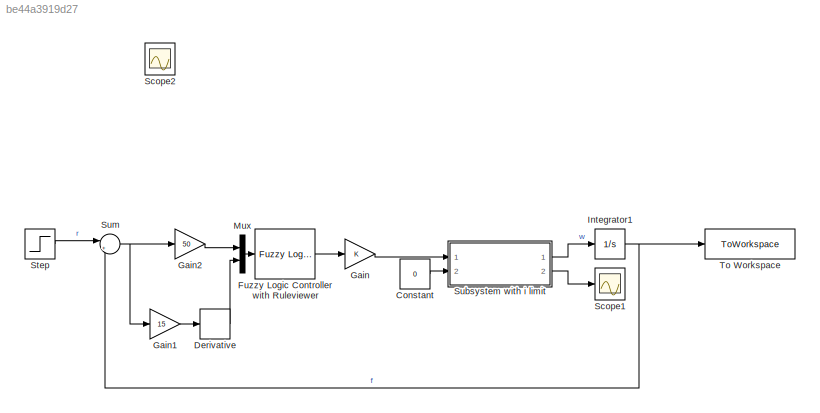
MODEL slx_be44a3919d27
KIND model
CONFIG AbsTol = auto
CONFIG EnableMultiTasking = off
CONFIG FixedStep = auto
CONFIG MaxStep = auto
CONFIG MinStep = auto
CONFIG RelTol = 1e-3
CONFIG SampleTimeConstraint = Unconstrained
CONFIG Solver = VariableStepAuto
CONFIG SolverName = VariableStepAuto
CONFIG StartTime = 0.0
CONFIG StopTime = 10.0
BLOCK [Constant] Constant
  Value = 0
BLOCK [Derivative] Derivative
BLOCK [Reference] Fuzzy Logic Controller with Ruleviewer  REF=fuzblock/Fuzzy Logic   (lib defined in mdl_858b3b3e7478)
Controller 
with Ruleviewer
  Ports = [1, 1]
  SourceBlock = fuzblock/Fuzzy Logic \nController \nwith Ruleviewer
  SourceProductBaseCode = FL
  SourceType = Fuzzy Inference System
BLOCK [Gain] Gain
BLOCK [Gain] Gain1
  Gain = 15
BLOCK [Gain] Gain2
  Gain = 50
BLOCK [Integrator] Integrator1
  Ports = [1, 1]
BLOCK [Mux] Mux
  DisplayOption = bar
  Inputs = 2
  Ports = [2, 1]
BLOCK [Scope] Scope1
  Floating = off
  NumInputPorts = 1
  Ports = [1]
  ScopeSpecificationString = Simulink.scopes.TimeScopeBlockCfg('CurrentConfiguration', extmgr.ConfigurationSet(extmgr.Configuration('Core','General UI',true),extmgr.Configuration('Core','Source UI',true),extmgr.Configuration('Sources','WiredSimulink',true,'DataLoggingVariableName','ScopeData1'),extmgr.Configuration('Visuals','Time Domain',true,'SerializedDisplays',{struct('MinYLimReal','-32.61623','MaxYLimReal','44.15708','YL...<+1418ch>
BLOCK [Scope] Scope2
  Floating = off
  IOType = viewer
  NumInputPorts = 1
  Ports = []
  ScopeSpecificationString = Simulink.scopes.TimeScopeBlockCfg('CurrentConfiguration', extmgr.ConfigurationSet(extmgr.Configuration('Core','General UI',true),extmgr.Configuration('Core','Source UI',true),extmgr.Configuration('Sources','WiredSimulink',true,'DataLoggingVariableName','ScopeData1'),extmgr.Configuration('Visuals','Time Domain',true,'SerializedDisplays',{struct('MinYLimReal','-0.12781','MaxYLimReal','1.15026','YLab...<+1418ch>
BLOCK [Step] Step
  SampleTime = 0
  Time = 0
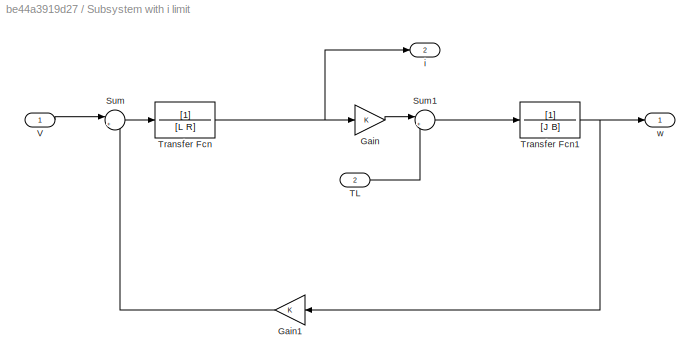
BLOCK [SubSystem] Subsystem with i limit
  Ports = [2, 2]
  RequestExecContextInheritance = off
BLOCK [Gain] Subsystem with i limit/Gain
  Gain = K
BLOCK [Gain] Subsystem with i limit/Gain1
  Gain = K
BLOCK [Sum] Subsystem with i limit/Sum
  Inputs = |+-
  Ports = [2, 1]
BLOCK [Sum] Subsystem with i limit/Sum1
  Inputs = |++
  Ports = [2, 1]
BLOCK [Inport] Subsystem with i limit/TL
  Port = 2
BLOCK [TransferFcn] Subsystem with i limit/Transfer Fcn
  Denominator = [L R]
BLOCK [TransferFcn] Subsystem with i limit/Transfer Fcn1
  Denominator = [J B]
BLOCK [Inport] Subsystem with i limit/V
BLOCK [Outport] Subsystem with i limit/i
  Port = 2
  VectorParamsAs1DForOutWhenUnconnected = off
BLOCK [Outport] Subsystem with i limit/w
  VectorParamsAs1DForOutWhenUnconnected = off
BLOCK [Sum] Sum
  Inputs = |+-
  Ports = [2, 1]
BLOCK [ToWorkspace] To Workspace
  FixptAsFi = on
  MaxDataPoints = inf
  Ports = [1]
  SampleTime = -1
  SaveFormat = Timeseries
  VariableName = simout
LINE Constant:1 -> Subsystem with i limit:2
LINE Derivative:1 -> Mux:2
LINE Fuzzy Logic Controller with Ruleviewer:1 -> Gain:1
LINE Gain1:1 -> Derivative:1
LINE Gain2:1 -> Mux:1
LINE Gain:1 -> Subsystem with i limit:1
NET Integrator1:1 -> Sum:2, To Workspace:1
LINE Mux:1 -> Fuzzy Logic Controller with Ruleviewer:1
LINE Step:1 -> Sum:1
LINE Subsystem with i limit/Gain1:1 -> Subsystem with i limit/Sum:2
LINE Subsystem with i limit/Gain:1 -> Subsystem with i limit/Sum1:1
LINE Subsystem with i limit/Sum1:1 -> Subsystem with i limit/Transfer Fcn1:1
LINE Subsystem with i limit/Sum:1 -> Subsystem with i limit/Transfer Fcn:1
LINE Subsystem with i limit/TL:1 -> Subsystem with i limit/Sum1:2
NET Subsystem with i limit/Transfer Fcn1:1 -> Subsystem with i limit/Gain1:1, Subsystem with i limit/w:1
NET Subsystem with i limit/Transfer Fcn:1 -> Subsystem with i limit/Gain:1, Subsystem with i limit/i:1
LINE Subsystem with i limit/V:1 -> Subsystem with i limit/Sum:1
LINE Subsystem with i limit:1 -> Integrator1:1
LINE Subsystem with i limit:2 -> Scope1:1
NET Sum:1 -> Gain1:1, Gain2:1
note: NET lines group one-source signal fan-out (src -> all destinations, sorted); 1:1 wires keep LINE
